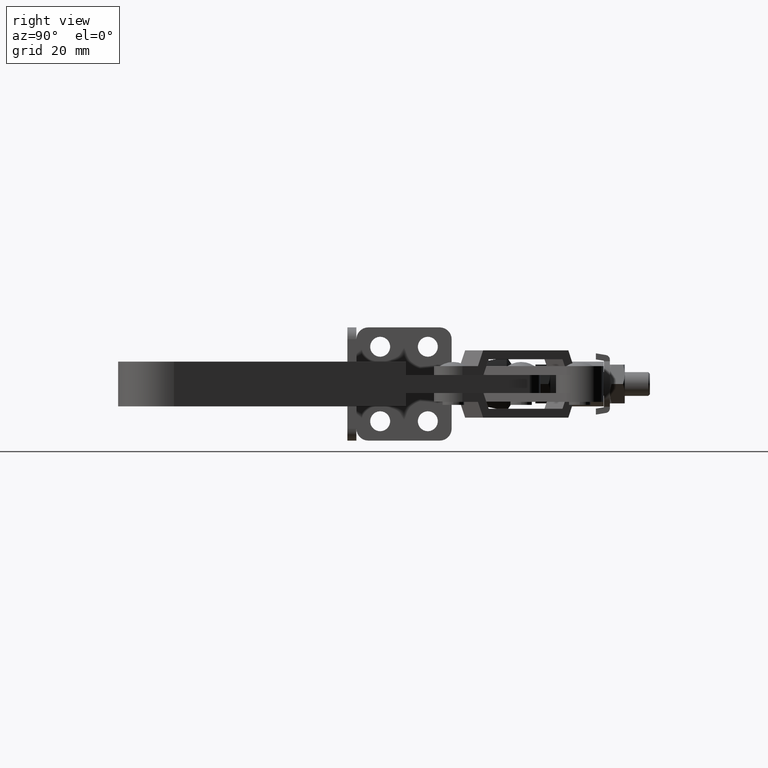
[diagram: clean part render]
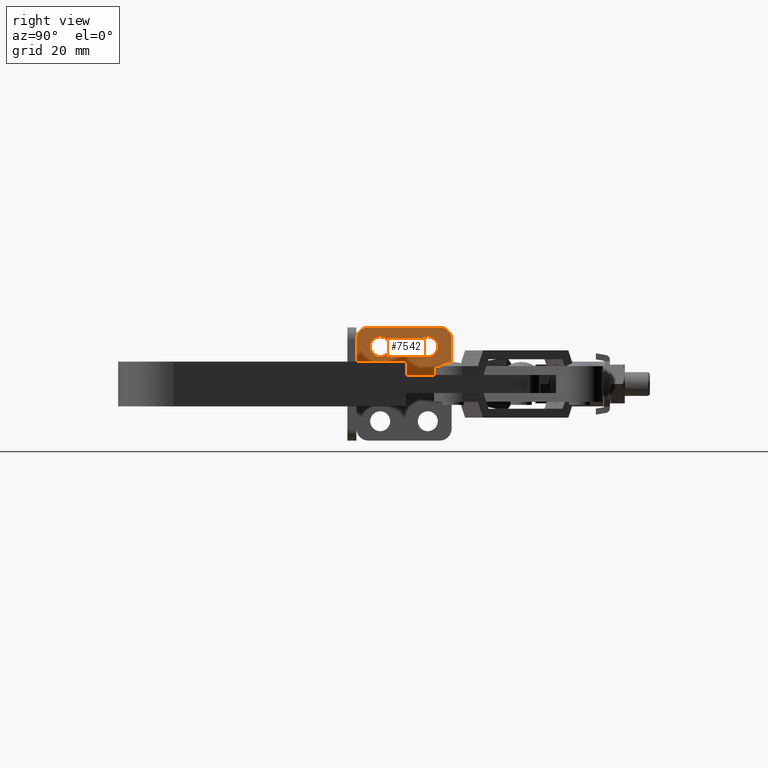
[diagram: same view with one face highlighted and labeled with its STEP entity id]
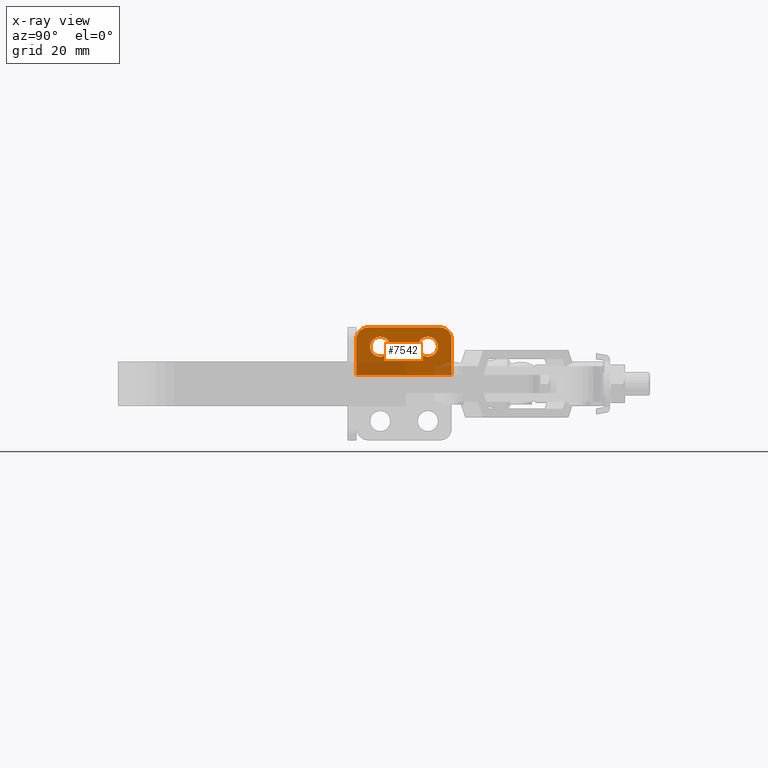
[diagram: x-ray of the same camera — body ghosted, the highlighted face saturated]
A machine part, right view. The second image highlights one B-rep face of the part: STEP entity #7542.
The next image is the same camera in x-ray: the body ghosted, the highlighted face saturated — about 22% of this face is hidden behind the body in this view.
In plain terms, the highlighted planar face has unit normal (1, 0, 0).
Its self-contained STEP definition (entity closure, byte-faithful):
#22 = VERTEX_POINT ( 'NONE', #2969 ) ;
#108 = CIRCLE ( 'NONE', #5765, 3.999999999999868100 ) ;
#209 = CIRCLE ( 'NONE', #4672, 3.350000000000000500 ) ;
#405 = VERTEX_POINT ( 'NONE', #5064 ) ;
#558 = VERTEX_POINT ( 'NONE', #4272 ) ;
#614 = CARTESIAN_POINT ( 'NONE',  ( 3.009999999999999800, 31.00000000001975300, 15.00001250002105900 ) ) ;
#651 = CARTESIAN_POINT ( 'NONE',  ( 3.009999999999998900, 27.00000000000022000, 15.85000000000131100 ) ) ;
#777 = EDGE_LOOP ( 'NONE', ( #4608, #5294 ) ) ;
#929 = EDGE_CURVE ( 'NONE', #8162, #7265, #8033, .T. ) ;
#1000 = EDGE_CURVE ( 'NONE', #5885, #558, #9026, .T. ) ;
#1076 = DIRECTION ( 'NONE',  ( 0.0000000000000000000, 0.0000000000000000000, -1.000000000000000000 ) ) ;
#1152 = CARTESIAN_POINT ( 'NONE',  ( 3.009999999999998900, 27.00000000000022000, 12.50000000000131300 ) ) ;
#1235 = LINE ( 'NONE', #7623, #3172 ) ;
#1431 = DIRECTION ( 'NONE',  ( 0.0000000000000000000, 0.0000000000000000000, -1.000000000000000000 ) ) ;
#1567 = AXIS2_PLACEMENT_3D ( 'NONE', #6850, #5560, #1076 ) ;
#1592 = LINE ( 'NONE', #6026, #4965 ) ;
#1771 = CARTESIAN_POINT ( 'NONE',  ( 3.009999999999999800, 31.00999999999983500, 19.00000000000144600 ) ) ;
#1839 = ORIENTED_EDGE ( 'NONE', *, *, #6799, .T. ) ;
#1849 = CARTESIAN_POINT ( 'NONE',  ( 3.009999999999998900, 11.00000000000022200, 15.85000000000131100 ) ) ;
#1877 = CARTESIAN_POINT ( 'NONE',  ( 3.009999999999998900, 11.00000000000022200, 12.50000000000131100 ) ) ;
#2036 = DIRECTION ( 'NONE',  ( 0.0000000000000000000, 0.0000000000000000000, -1.000000000000000000 ) ) ;
#2065 = DIRECTION ( 'NONE',  ( 1.000000000000000000, 0.0000000000000000000, 0.0000000000000000000 ) ) ;
#2249 = ORIENTED_EDGE ( 'NONE', *, *, #4924, .T. ) ;
#2253 = ORIENTED_EDGE ( 'NONE', *, *, #7188, .T. ) ;
#2293 = ORIENTED_EDGE ( 'NONE', *, *, #6739, .T. ) ;
#2346 = CARTESIAN_POINT ( 'NONE',  ( 3.009999999999998900, 11.00000000000022200, 12.50000000000131100 ) ) ;
#2703 = CIRCLE ( 'NONE', #8004, 3.349999999999998800 ) ;
#2771 = DIRECTION ( 'NONE',  ( -1.000000000000000000, -0.0000000000000000000, -0.0000000000000000000 ) ) ;
#2969 = CARTESIAN_POINT ( 'NONE',  ( 3.009999999999998900, 35.00000000000019200, 2.999999999999947200 ) ) ;
#2997 = VERTEX_POINT ( 'NONE', #6320 ) ;
#3172 = VECTOR ( 'NONE', #7409, 1000.000000000000000 ) ;
#3364 = EDGE_LOOP ( 'NONE', ( #3745, #1839 ) ) ;
#3745 = ORIENTED_EDGE ( 'NONE', *, *, #8101, .T. ) ;
#4059 = DIRECTION ( 'NONE',  ( 0.0000000000000000000, 0.0000000000000000000, -1.000000000000000000 ) ) ;
#4121 = AXIS2_PLACEMENT_3D ( 'NONE', #7806, #5103, #5766 ) ;
#4187 = AXIS2_PLACEMENT_3D ( 'NONE', #8209, #2065, #7118 ) ;
#4272 = CARTESIAN_POINT ( 'NONE',  ( 3.009999999999998900, 11.00000000000022200, 9.150000000001309500 ) ) ;
#4575 = CARTESIAN_POINT ( 'NONE',  ( 3.009999999999998900, 27.00000000000022000, 9.150000000001313100 ) ) ;
#4608 = ORIENTED_EDGE ( 'NONE', *, *, #1000, .T. ) ;
#4672 = AXIS2_PLACEMENT_3D ( 'NONE', #1877, #2771, #1431 ) ;
#4817 = FACE_OUTER_BOUND ( 'NONE', #7220, .T. ) ;
#4924 = EDGE_CURVE ( 'NONE', #22, #2997, #1592, .T. ) ;
#4965 = VECTOR ( 'NONE', #6598, 1000.000000000000000 ) ;
#5064 = CARTESIAN_POINT ( 'NONE',  ( 3.009999999999999800, 3.000000000000220300, 14.98000000000187300 ) ) ;
#5070 = CARTESIAN_POINT ( 'NONE',  ( 3.009999999999998900, 2.999999999999990200, 2.999999999999947200 ) ) ;
#5078 = DIRECTION ( 'NONE',  ( 0.0000000000000000000, -1.000000000000000000, -5.784821929059754800E-015 ) ) ;
#5103 = DIRECTION ( 'NONE',  ( -1.000000000000000000, -0.0000000000000000000, -0.0000000000000000000 ) ) ;
#5189 = ORIENTED_EDGE ( 'NONE', *, *, #7501, .T. ) ;
#5194 = EDGE_CURVE ( 'NONE', #558, #5885, #209, .T. ) ;
#5294 = ORIENTED_EDGE ( 'NONE', *, *, #5194, .T. ) ;
#5560 = DIRECTION ( 'NONE',  ( 1.000000000000000000, 0.0000000000000000000, 0.0000000000000000000 ) ) ;
#5765 = AXIS2_PLACEMENT_3D ( 'NONE', #614, #9020, #4059 ) ;
#5766 = DIRECTION ( 'NONE',  ( 0.0000000000000000000, 0.0000000000000000000, -1.000000000000000000 ) ) ;
#5885 = VERTEX_POINT ( 'NONE', #1849 ) ;
#5949 = VERTEX_POINT ( 'NONE', #5070 ) ;
#6026 = CARTESIAN_POINT ( 'NONE',  ( 3.009999999999999800, 35.00000000000022700, -0.9967443144784649000 ) ) ;
#6047 = LINE ( 'NONE', #8524, #6469 ) ;
#6320 = CARTESIAN_POINT ( 'NONE',  ( 3.009999999999999800, 35.00000000000008500, 15.00000000000131800 ) ) ;
#6469 = VECTOR ( 'NONE', #9313, 1000.000000000000000 ) ;
#6561 = VECTOR ( 'NONE', #5078, 1000.000000000000000 ) ;
#6598 = DIRECTION ( 'NONE',  ( 0.0000000000000000000, -8.675382649738729700E-015, 1.000000000000000000 ) ) ;
#6739 = EDGE_CURVE ( 'NONE', #2997, #8162, #108, .T. ) ;
#6799 = EDGE_CURVE ( 'NONE', #9053, #8879, #8029, .T. ) ;
#6850 = CARTESIAN_POINT ( 'NONE',  ( 3.009999999999999800, 7.019999999999655800, 14.98000000000187300 ) ) ;
#6854 = ORIENTED_EDGE ( 'NONE', *, *, #8483, .F. ) ;
#7118 = DIRECTION ( 'NONE',  ( 0.0000000000000000000, 0.0000000000000000000, -1.000000000000000000 ) ) ;
#7188 = EDGE_CURVE ( 'NONE', #7265, #405, #8262, .T. ) ;
#7220 = EDGE_LOOP ( 'NONE', ( #6854, #2249, #2293, #8164, #2253, #5189 ) ) ;
#7265 = VERTEX_POINT ( 'NONE', #8806 ) ;
#7356 = DIRECTION ( 'NONE',  ( -1.000000000000000000, -0.0000000000000000000, -0.0000000000000000000 ) ) ;
#7409 = DIRECTION ( 'NONE',  ( 0.0000000000000000000, -1.000000000000000000, 0.0000000000000000000 ) ) ;
#7501 = EDGE_CURVE ( 'NONE', #405, #5949, #6047, .T. ) ;
#7542 = ADVANCED_FACE ( 'NONE', ( #7934, #8392, #4817 ), #7782, .T. ) ;
#7623 = CARTESIAN_POINT ( 'NONE',  ( 3.009999999999998900, -24.20113455339107500, 2.999999999999947200 ) ) ;
#7782 = PLANE ( 'NONE',  #4187 ) ;
#7806 = CARTESIAN_POINT ( 'NONE',  ( 3.009999999999998900, 27.00000000000022000, 12.50000000000131300 ) ) ;
#7934 = FACE_BOUND ( 'NONE', #3364, .T. ) ;
#8004 = AXIS2_PLACEMENT_3D ( 'NONE', #1152, #7356, #9436 ) ;
#8029 = CIRCLE ( 'NONE', #4121, 3.349999999999998800 ) ;
#8033 = LINE ( 'NONE', #1771, #6561 ) ;
#8101 = EDGE_CURVE ( 'NONE', #8879, #9053, #2703, .T. ) ;
#8162 = VERTEX_POINT ( 'NONE', #8675 ) ;
#8164 = ORIENTED_EDGE ( 'NONE', *, *, #929, .T. ) ;
#8209 = CARTESIAN_POINT ( 'NONE',  ( 3.009999999999999800, 31.00000000001975300, 15.00001250002105900 ) ) ;
#8262 = CIRCLE ( 'NONE', #1567, 4.019999999999435600 ) ;
#8392 = FACE_BOUND ( 'NONE', #777, .T. ) ;
#8440 = AXIS2_PLACEMENT_3D ( 'NONE', #2346, #9096, #2036 ) ;
#8483 = EDGE_CURVE ( 'NONE', #22, #5949, #1235, .T. ) ;
#8524 = CARTESIAN_POINT ( 'NONE',  ( 3.009999999999999800, 3.000000000000220300, 14.98000000000187300 ) ) ;
#8675 = CARTESIAN_POINT ( 'NONE',  ( 3.009999999999999800, 31.00999999999983500, 19.00000000000144600 ) ) ;
#8806 = CARTESIAN_POINT ( 'NONE',  ( 3.009999999999999800, 7.019999999999654100, 19.00000000000130700 ) ) ;
#8879 = VERTEX_POINT ( 'NONE', #651 ) ;
#9020 = DIRECTION ( 'NONE',  ( 1.000000000000000000, 0.0000000000000000000, 0.0000000000000000000 ) ) ;
#9026 = CIRCLE ( 'NONE', #8440, 3.350000000000000500 ) ;
#9053 = VERTEX_POINT ( 'NONE', #4575 ) ;
#9096 = DIRECTION ( 'NONE',  ( -1.000000000000000000, -0.0000000000000000000, -0.0000000000000000000 ) ) ;
#9313 = DIRECTION ( 'NONE',  ( 0.0000000000000000000, 1.900115582501987300E-016, -1.000000000000000000 ) ) ;
#9436 = DIRECTION ( 'NONE',  ( 0.0000000000000000000, 0.0000000000000000000, -1.000000000000000000 ) ) ;